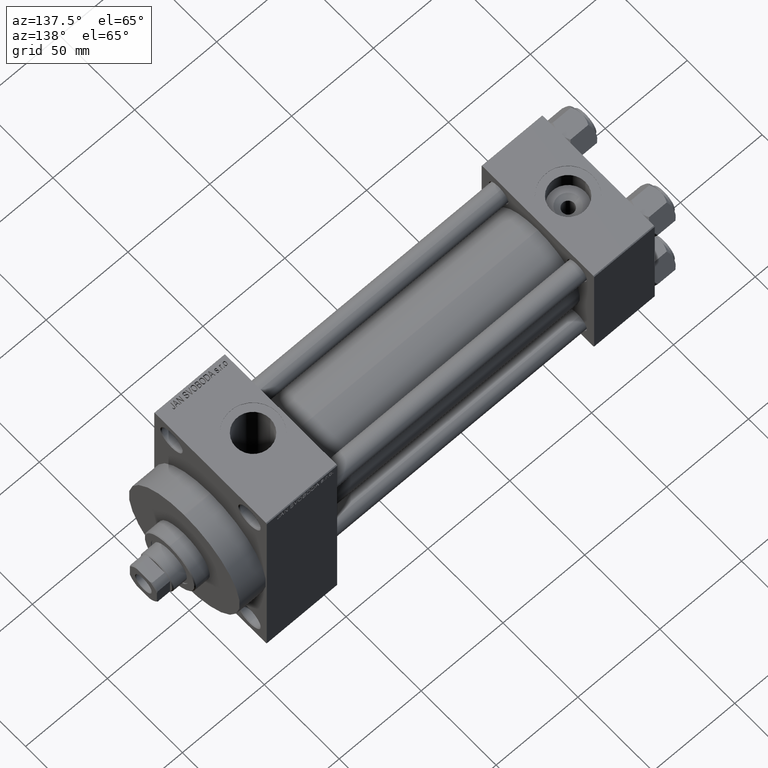
[diagram: clean part render]
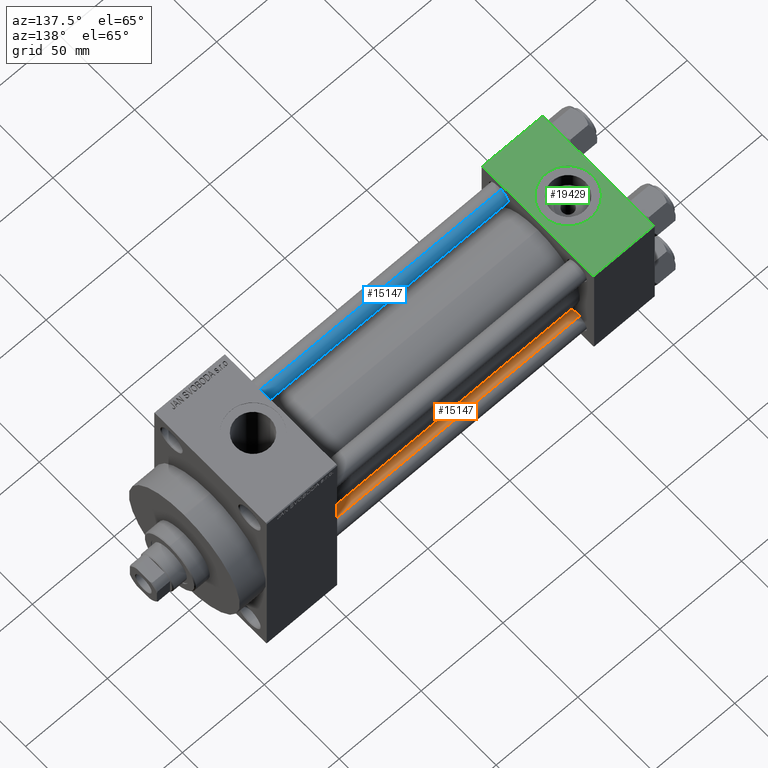
[diagram: same view with three faces highlighted in distinct colors, each labeled with its STEP entity id]
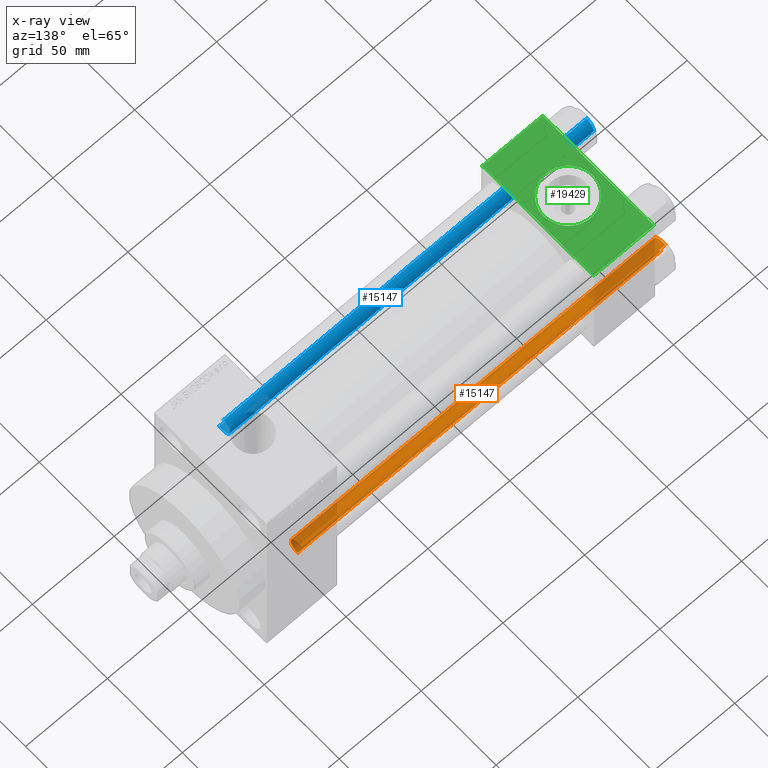
[diagram: x-ray of the same camera — body ghosted, the three highlighted faces saturated]
A machine part, auxiliary view with three faces highlighted in distinct colors.
The next image is the same camera in x-ray (body ghosted, the three faces saturated) — at least one of them is partly hidden behind the body in this view.
Their STEP definitions:

[orange] entity #15147 — the highlighted cylindrical surface (edge-blend (fillet) strip) has radius 6 mm, axis along (1, -0, 0).
#1391 = EDGE_CURVE ( 'NONE', #26655, #4503, #42162, .T. ) ;
#2025 = DIRECTION ( 'NONE',  ( -0.000000000000000000, -0.000000000000000000, 1.000000000000000000 ) ) ;
#2427 = CARTESIAN_POINT ( 'NONE',  ( 6.000000000000000888, 7.347880794884119736E-16, 0.5000000000001947331 ) ) ;
#4252 = VERTEX_POINT ( 'NONE', #16590 ) ;
#4503 = VERTEX_POINT ( 'NONE', #2427 ) ;
#6553 = EDGE_CURVE ( 'NONE', #39660, #4252, #39102, .T. ) ;
#7581 = CARTESIAN_POINT ( 'NONE',  ( 0.000000000000000000, 0.000000000000000000, 222.5000000000000853 ) ) ;
#8548 = EDGE_CURVE ( 'NONE', #26655, #39660, #46140, .T. ) ;
#8574 = VECTOR ( 'NONE', #38341, 1000.000000000000000 ) ;
#9242 = CARTESIAN_POINT ( 'NONE',  ( 6.000000000000000888, 7.347880794884119736E-16, 223.0000000000000000 ) ) ;
#12331 = ORIENTED_EDGE ( 'NONE', *, *, #14494, .T. ) ;
#13601 = DIRECTION ( 'NONE',  ( -0.000000000000000000, -0.000000000000000000, -1.000000000000000000 ) ) ;
#14494 = EDGE_CURVE ( 'NONE', #4252, #4503, #38597, .T. ) ;
#14710 = ORIENTED_EDGE ( 'NONE', *, *, #8548, .T. ) ;
#14823 = VECTOR ( 'NONE', #13601, 1000.000000000000000 ) ;
#15147 = ADVANCED_FACE ( 'NONE', ( #45858 ), #24365, .T. ) ;
#16590 = CARTESIAN_POINT ( 'NONE',  ( -6.000000000000000888, 0.000000000000000000, 0.5000000000001947331 ) ) ;
#16980 = CARTESIAN_POINT ( 'NONE',  ( 0.000000000000000000, 0.000000000000000000, 223.0000000000000000 ) ) ;
#17818 = CARTESIAN_POINT ( 'NONE',  ( -6.000000000000000888, 0.000000000000000000, 222.5000000000000853 ) ) ;
#19702 = DIRECTION ( 'NONE',  ( 1.000000000000000000, 0.000000000000000000, 0.000000000000000000 ) ) ;
#21421 = DIRECTION ( 'NONE',  ( 0.000000000000000000, 0.000000000000000000, -1.000000000000000000 ) ) ;
#21901 = DIRECTION ( 'NONE',  ( 1.000000000000000000, 0.000000000000000000, 0.000000000000000000 ) ) ;
#24365 = CYLINDRICAL_SURFACE ( 'NONE', #46243, 6.000000000000000888 ) ;
#26655 = VERTEX_POINT ( 'NONE', #40314 ) ;
#27836 = AXIS2_PLACEMENT_3D ( 'NONE', #7581, #21421, #21901 ) ;
#34638 = DIRECTION ( 'NONE',  ( -1.000000000000000000, 0.000000000000000000, 0.000000000000000000 ) ) ;
#36158 = ORIENTED_EDGE ( 'NONE', *, *, #6553, .T. ) ;
#38341 = DIRECTION ( 'NONE',  ( -0.000000000000000000, -0.000000000000000000, -1.000000000000000000 ) ) ;
#38597 = CIRCLE ( 'NONE', #43929, 6.000000000000000888 ) ;
#38867 = CARTESIAN_POINT ( 'NONE',  ( -6.000000000000000888, 0.000000000000000000, 223.0000000000000000 ) ) ;
#39102 = LINE ( 'NONE', #38867, #14823 ) ;
#39660 = VERTEX_POINT ( 'NONE', #17818 ) ;
#40314 = CARTESIAN_POINT ( 'NONE',  ( 6.000000000000000888, 7.347880794884119736E-16, 222.5000000000000853 ) ) ;
#41909 = ORIENTED_EDGE ( 'NONE', *, *, #1391, .F. ) ;
#42038 = DIRECTION ( 'NONE',  ( -0.000000000000000000, -0.000000000000000000, -1.000000000000000000 ) ) ;
#42162 = LINE ( 'NONE', #9242, #8574 ) ;
#43929 = AXIS2_PLACEMENT_3D ( 'NONE', #45701, #2025, #19702 ) ;
#44650 = EDGE_LOOP ( 'NONE', ( #41909, #14710, #36158, #12331 ) ) ;
#45701 = CARTESIAN_POINT ( 'NONE',  ( 0.000000000000000000, 0.000000000000000000, 0.5000000000001947331 ) ) ;
#45858 = FACE_OUTER_BOUND ( 'NONE', #44650, .T. ) ;
#46140 = CIRCLE ( 'NONE', #27836, 6.000000000000000888 ) ;
#46243 = AXIS2_PLACEMENT_3D ( 'NONE', #16980, #42038, #34638 ) ;

[blue] entity #15147 — the highlighted cylindrical surface (edge-blend (fillet) strip) has radius 6 mm, axis along (1, 0, 0).
#1391 = EDGE_CURVE ( 'NONE', #26655, #4503, #42162, .T. ) ;
#2025 = DIRECTION ( 'NONE',  ( -0.000000000000000000, -0.000000000000000000, 1.000000000000000000 ) ) ;
#2427 = CARTESIAN_POINT ( 'NONE',  ( 6.000000000000000888, 7.347880794884119736E-16, 0.5000000000001947331 ) ) ;
#4252 = VERTEX_POINT ( 'NONE', #16590 ) ;
#4503 = VERTEX_POINT ( 'NONE', #2427 ) ;
#6553 = EDGE_CURVE ( 'NONE', #39660, #4252, #39102, .T. ) ;
#7581 = CARTESIAN_POINT ( 'NONE',  ( 0.000000000000000000, 0.000000000000000000, 222.5000000000000853 ) ) ;
#8548 = EDGE_CURVE ( 'NONE', #26655, #39660, #46140, .T. ) ;
#8574 = VECTOR ( 'NONE', #38341, 1000.000000000000000 ) ;
#9242 = CARTESIAN_POINT ( 'NONE',  ( 6.000000000000000888, 7.347880794884119736E-16, 223.0000000000000000 ) ) ;
#12331 = ORIENTED_EDGE ( 'NONE', *, *, #14494, .T. ) ;
#13601 = DIRECTION ( 'NONE',  ( -0.000000000000000000, -0.000000000000000000, -1.000000000000000000 ) ) ;
#14494 = EDGE_CURVE ( 'NONE', #4252, #4503, #38597, .T. ) ;
#14710 = ORIENTED_EDGE ( 'NONE', *, *, #8548, .T. ) ;
#14823 = VECTOR ( 'NONE', #13601, 1000.000000000000000 ) ;
#15147 = ADVANCED_FACE ( 'NONE', ( #45858 ), #24365, .T. ) ;
#16590 = CARTESIAN_POINT ( 'NONE',  ( -6.000000000000000888, 0.000000000000000000, 0.5000000000001947331 ) ) ;
#16980 = CARTESIAN_POINT ( 'NONE',  ( 0.000000000000000000, 0.000000000000000000, 223.0000000000000000 ) ) ;
#17818 = CARTESIAN_POINT ( 'NONE',  ( -6.000000000000000888, 0.000000000000000000, 222.5000000000000853 ) ) ;
#19702 = DIRECTION ( 'NONE',  ( 1.000000000000000000, 0.000000000000000000, 0.000000000000000000 ) ) ;
#21421 = DIRECTION ( 'NONE',  ( 0.000000000000000000, 0.000000000000000000, -1.000000000000000000 ) ) ;
#21901 = DIRECTION ( 'NONE',  ( 1.000000000000000000, 0.000000000000000000, 0.000000000000000000 ) ) ;
#24365 = CYLINDRICAL_SURFACE ( 'NONE', #46243, 6.000000000000000888 ) ;
#26655 = VERTEX_POINT ( 'NONE', #40314 ) ;
#27836 = AXIS2_PLACEMENT_3D ( 'NONE', #7581, #21421, #21901 ) ;
#34638 = DIRECTION ( 'NONE',  ( -1.000000000000000000, 0.000000000000000000, 0.000000000000000000 ) ) ;
#36158 = ORIENTED_EDGE ( 'NONE', *, *, #6553, .T. ) ;
#38341 = DIRECTION ( 'NONE',  ( -0.000000000000000000, -0.000000000000000000, -1.000000000000000000 ) ) ;
#38597 = CIRCLE ( 'NONE', #43929, 6.000000000000000888 ) ;
#38867 = CARTESIAN_POINT ( 'NONE',  ( -6.000000000000000888, 0.000000000000000000, 223.0000000000000000 ) ) ;
#39102 = LINE ( 'NONE', #38867, #14823 ) ;
#39660 = VERTEX_POINT ( 'NONE', #17818 ) ;
#40314 = CARTESIAN_POINT ( 'NONE',  ( 6.000000000000000888, 7.347880794884119736E-16, 222.5000000000000853 ) ) ;
#41909 = ORIENTED_EDGE ( 'NONE', *, *, #1391, .F. ) ;
#42038 = DIRECTION ( 'NONE',  ( -0.000000000000000000, -0.000000000000000000, -1.000000000000000000 ) ) ;
#42162 = LINE ( 'NONE', #9242, #8574 ) ;
#43929 = AXIS2_PLACEMENT_3D ( 'NONE', #45701, #2025, #19702 ) ;
#44650 = EDGE_LOOP ( 'NONE', ( #41909, #14710, #36158, #12331 ) ) ;
#45701 = CARTESIAN_POINT ( 'NONE',  ( 0.000000000000000000, 0.000000000000000000, 0.5000000000001947331 ) ) ;
#45858 = FACE_OUTER_BOUND ( 'NONE', #44650, .T. ) ;
#46140 = CIRCLE ( 'NONE', #27836, 6.000000000000000888 ) ;
#46243 = AXIS2_PLACEMENT_3D ( 'NONE', #16980, #42038, #34638 ) ;

[green] entity #19429 — the highlighted planar face has unit normal (0, 0, -1).
#1527 = EDGE_CURVE ( 'NONE', #8415, #4479, #14259, .T. ) ;
#3302 = ORIENTED_EDGE ( 'NONE', *, *, #16187, .F. ) ;
#3712 = AXIS2_PLACEMENT_3D ( 'NONE', #29063, #34269, #41423 ) ;
#4479 = VERTEX_POINT ( 'NONE', #22757 ) ;
#5192 = LINE ( 'NONE', #9007, #45422 ) ;
#5366 = DIRECTION ( 'NONE',  ( 0.000000000000000000, 1.000000000000000000, 9.251858538542971581E-17 ) ) ;
#6003 = CARTESIAN_POINT ( 'NONE',  ( 0.000000000000000000, 36.99999999999999289, 37.50000000000000000 ) ) ;
#8415 = VERTEX_POINT ( 'NONE', #16442 ) ;
#9007 = CARTESIAN_POINT ( 'NONE',  ( 37.00000000000000000, -37.00000000000000711, 37.49999999999999289 ) ) ;
#10285 = EDGE_LOOP ( 'NONE', ( #35440, #35208, #19704, #21670 ) ) ;
#10304 = DIRECTION ( 'NONE',  ( 0.000000000000000000, 0.000000000000000000, 1.000000000000000000 ) ) ;
#10785 = CARTESIAN_POINT ( 'NONE',  ( 18.50000000000000000, -5.204170427930421283E-15, 37.50000000000000000 ) ) ;
#11014 = DIRECTION ( 'NONE',  ( 0.000000000000000000, -1.000000000000000000, -9.251858538542971581E-17 ) ) ;
#12315 = PLANE ( 'NONE',  #19701 ) ;
#13248 = EDGE_CURVE ( 'NONE', #29774, #4479, #5192, .T. ) ;
#13898 = VERTEX_POINT ( 'NONE', #23622 ) ;
#14259 = LINE ( 'NONE', #21158, #29152 ) ;
#14452 = VECTOR ( 'NONE', #21265, 1000.000000000000000 ) ;
#16187 = EDGE_CURVE ( 'NONE', #13898, #28461, #43190, .T. ) ;
#16442 = CARTESIAN_POINT ( 'NONE',  ( 37.00000000000000000, 36.99999999999999289, 37.50000000000000000 ) ) ;
#18192 = CIRCLE ( 'NONE', #3712, 15.00000000000000355 ) ;
#18402 = CARTESIAN_POINT ( 'NONE',  ( 0.000000000000000000, 37.49999999999999289, 37.50000000000000000 ) ) ;
#19429 = ADVANCED_FACE ( 'NONE', ( #23962, #38510 ), #12315, .F. ) ;
#19701 = AXIS2_PLACEMENT_3D ( 'NONE', #38047, #23729, #5366 ) ;
#19704 = ORIENTED_EDGE ( 'NONE', *, *, #1527, .F. ) ;
#21158 = CARTESIAN_POINT ( 'NONE',  ( 37.00000000000000000, 37.49999999999999289, 37.50000000000000000 ) ) ;
#21265 = DIRECTION ( 'NONE',  ( -1.000000000000000000, 0.000000000000000000, 0.000000000000000000 ) ) ;
#21670 = ORIENTED_EDGE ( 'NONE', *, *, #29922, .T. ) ;
#22482 = CARTESIAN_POINT ( 'NONE',  ( 3.499999999999997780, -3.367200229209391300E-15, 37.50000000000000000 ) ) ;
#22757 = CARTESIAN_POINT ( 'NONE',  ( 37.00000000000000000, -37.00000000000000711, 37.49999999999999289 ) ) ;
#23622 = CARTESIAN_POINT ( 'NONE',  ( 33.50000000000000000, -5.204170427930421283E-15, 37.50000000000000000 ) ) ;
#23729 = DIRECTION ( 'NONE',  ( 0.000000000000000000, 9.251858538542971581E-17, -1.000000000000000000 ) ) ;
#23962 = FACE_BOUND ( 'NONE', #34365, .T. ) ;
#28058 = EDGE_CURVE ( 'NONE', #28461, #13898, #18192, .T. ) ;
#28461 = VERTEX_POINT ( 'NONE', #22482 ) ;
#29063 = CARTESIAN_POINT ( 'NONE',  ( 18.50000000000000000, -5.204170427930421283E-15, 37.50000000000000000 ) ) ;
#29152 = VECTOR ( 'NONE', #38812, 1000.000000000000000 ) ;
#29491 = AXIS2_PLACEMENT_3D ( 'NONE', #10785, #10304, #43941 ) ;
#29774 = VERTEX_POINT ( 'NONE', #33020 ) ;
#29922 = EDGE_CURVE ( 'NONE', #8415, #34343, #31296, .T. ) ;
#31225 = CARTESIAN_POINT ( 'NONE',  ( 0.000000000000000000, 36.99999999999999289, 37.50000000000000000 ) ) ;
#31296 = LINE ( 'NONE', #6003, #14452 ) ;
#33020 = CARTESIAN_POINT ( 'NONE',  ( 0.000000000000000000, -37.00000000000000711, 37.49999999999999289 ) ) ;
#33193 = LINE ( 'NONE', #18402, #42077 ) ;
#34269 = DIRECTION ( 'NONE',  ( 0.000000000000000000, 0.000000000000000000, 1.000000000000000000 ) ) ;
#34343 = VERTEX_POINT ( 'NONE', #31225 ) ;
#34365 = EDGE_LOOP ( 'NONE', ( #3302, #43371 ) ) ;
#34764 = DIRECTION ( 'NONE',  ( 1.000000000000000000, 0.000000000000000000, 0.000000000000000000 ) ) ;
#35208 = ORIENTED_EDGE ( 'NONE', *, *, #13248, .T. ) ;
#35440 = ORIENTED_EDGE ( 'NONE', *, *, #39181, .T. ) ;
#38047 = CARTESIAN_POINT ( 'NONE',  ( 37.00000000000000000, 37.49999999999999289, 37.50000000000000000 ) ) ;
#38510 = FACE_OUTER_BOUND ( 'NONE', #10285, .T. ) ;
#38812 = DIRECTION ( 'NONE',  ( 0.000000000000000000, -1.000000000000000000, -9.251858538542971581E-17 ) ) ;
#39181 = EDGE_CURVE ( 'NONE', #34343, #29774, #33193, .T. ) ;
#41423 = DIRECTION ( 'NONE',  ( 1.000000000000000000, 0.000000000000000000, 0.000000000000000000 ) ) ;
#42077 = VECTOR ( 'NONE', #11014, 1000.000000000000000 ) ;
#43190 = CIRCLE ( 'NONE', #29491, 15.00000000000000355 ) ;
#43371 = ORIENTED_EDGE ( 'NONE', *, *, #28058, .F. ) ;
#43941 = DIRECTION ( 'NONE',  ( 1.000000000000000000, 0.000000000000000000, 0.000000000000000000 ) ) ;
#45422 = VECTOR ( 'NONE', #34764, 1000.000000000000000 ) ;